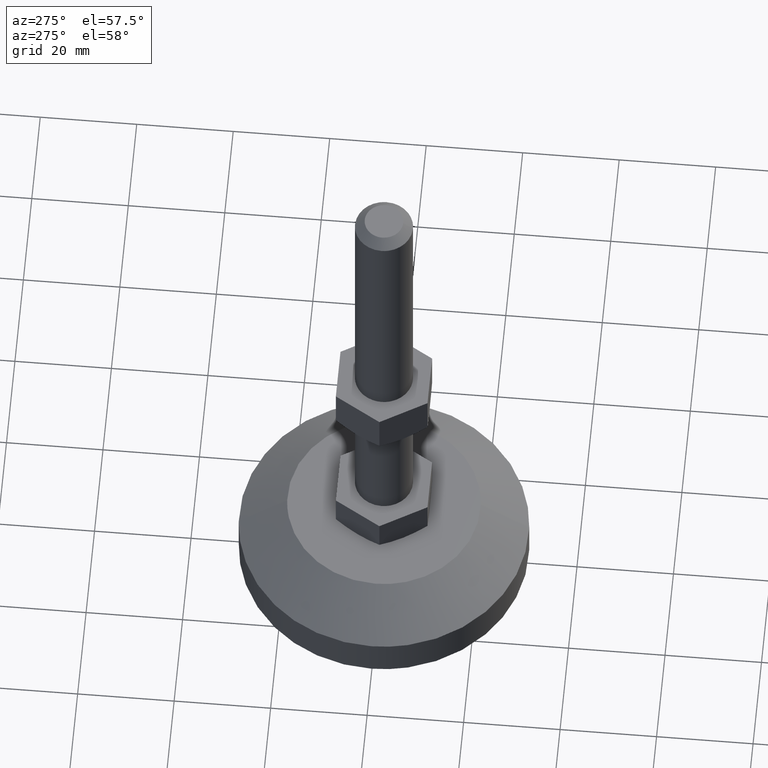
[diagram: clean part render]
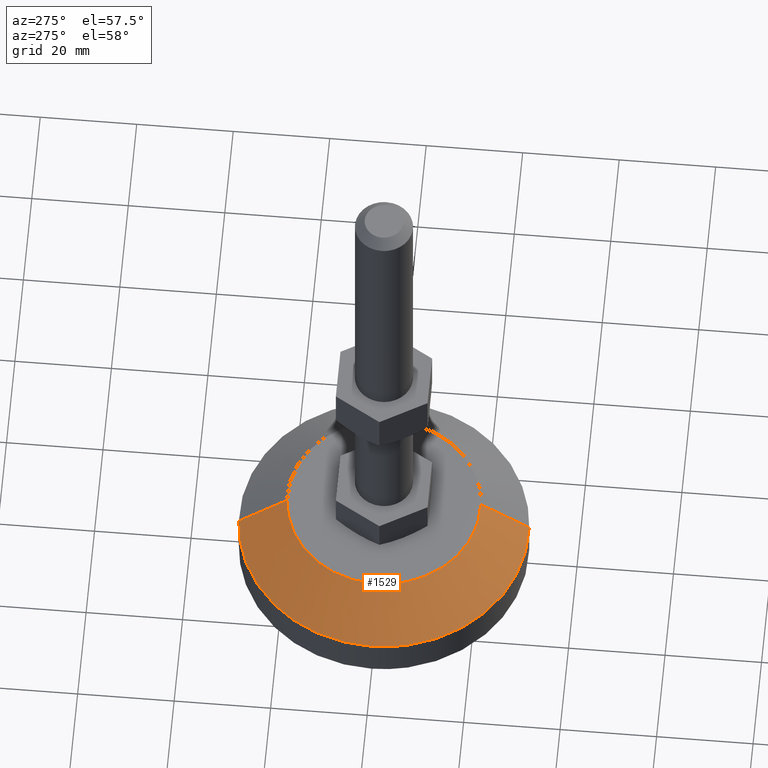
[diagram: same view with one face highlighted and labeled with its STEP entity id]
A machine part, auxiliary view. The second image highlights one B-rep face of the part: STEP entity #1529.
In plain terms, the highlighted face is a freeform B-spline surface patch.
Its self-contained STEP definition (entity closure, byte-faithful):
#889=CARTESIAN_POINT('',(-1.831437191129770,29.944045073588750,8.609004034189663));
#890=VERTEX_POINT('',#889);
#908=CARTESIAN_POINT('',(1.831437191129769,-29.944045073588750,8.609004034189665));
#909=VERTEX_POINT('',#908);
#956=CARTESIAN_POINT('',(-30.0,0.0,8.609004000000001));
#957=VERTEX_POINT('',#956);
#958=CARTESIAN_POINT('',(-30.0,0.0,8.609004000000001));
#959=CARTESIAN_POINT('',(-30.000009494969763,28.221217272297473,8.609004017094833));
#960=CARTESIAN_POINT('',(-1.831437191129770,29.944045073588750,8.609004034189663));
#968=(BOUNDED_CURVE()B_SPLINE_CURVE(2,(#958,#959,#960),.UNSPECIFIED.,.F.,.U.)B_SPLINE_CURVE_WITH_KNOTS((3,3),(0.0,0.239333181122431),.UNSPECIFIED.)CURVE()GEOMETRIC_REPRESENTATION_ITEM()RATIONAL_B_SPLINE_CURVE((1.0,0.719603736848753,0.976072510776148))REPRESENTATION_ITEM(''));
#969=EDGE_CURVE('',#957,#890,#968,.T.);
#975=CARTESIAN_POINT('',(1.831437191129769,-29.944045073588750,8.609004034189665));
#976=CARTESIAN_POINT('',(0.916582570326438,-29.999998814981005,8.609004033698350));
#977=CARTESIAN_POINT('',(0.000018426956785,-29.999998833347359,8.609004033176065));
#978=CARTESIAN_POINT('',(-29.999991068012978,-29.999999434495532,8.609004016081233));
#979=CARTESIAN_POINT('',(-30.0,0.0,8.609004000000001));
#987=(BOUNDED_CURVE()B_SPLINE_CURVE(2,(#975,#976,#977,#978,#979),.UNSPECIFIED.,.F.,.U.)B_SPLINE_CURVE_WITH_KNOTS((3,2,3),(0.739333181122431,0.750000000000000,1.0),.UNSPECIFIED.)CURVE()GEOMETRIC_REPRESENTATION_ITEM()RATIONAL_B_SPLINE_CURVE((0.976072510776148,0.987503044337795,1.0,0.707106781186547,1.0))REPRESENTATION_ITEM(''));
#988=EDGE_CURVE('',#909,#957,#987,.T.);
#1426=CARTESIAN_POINT('',(-1.220970790712717,19.962695968438549,16.999999999998192));
#1427=VERTEX_POINT('',#1426);
#1428=CARTESIAN_POINT('',(-1.220970790712717,19.962695968438549,16.999999999998192));
#1429=CARTESIAN_POINT('',(-1.831437191129770,29.944045073588750,8.609004034189663));
#1430=QUASI_UNIFORM_CURVE('',1,(#1428,#1429),.UNSPECIFIED.,.F.,.U.);
#1431=EDGE_CURVE('',#1427,#890,#1430,.T.);
#1450=CARTESIAN_POINT('',(1.220970790712715,-19.962695968438549,16.999999999998192));
#1451=VERTEX_POINT('',#1450);
#1465=CARTESIAN_POINT('',(1.220970790712715,-19.962695968438549,16.999999999998192));
#1466=CARTESIAN_POINT('',(1.831437191129769,-29.944045073588750,8.609004034189665));
#1467=QUASI_UNIFORM_CURVE('',1,(#1465,#1466),.UNSPECIFIED.,.F.,.U.);
#1468=EDGE_CURVE('',#1451,#909,#1467,.T.);
#1475=CARTESIAN_POINT('',(1.205708655813425,-19.713162268831869,17.209774899999999));
#1476=CARTESIAN_POINT('',(-18.507453613018441,-20.918870924645290,17.209774900000003));
#1477=CARTESIAN_POINT('',(-19.713162268831869,-1.205708655813425,17.209774899999999));
#1478=CARTESIAN_POINT('',(-20.918870924645290,18.507453613018441,17.209774900000003));
#1479=CARTESIAN_POINT('',(-1.205708655813425,19.713162268831869,17.209774899999999));
#1480=CARTESIAN_POINT('',(1.847099874301517,-30.199815994751610,8.393984727499998));
#1481=CARTESIAN_POINT('',(-28.352716120450101,-32.046915869053130,8.393984727499998));
#1482=CARTESIAN_POINT('',(-30.199815994751610,-1.847099874301517,8.393984727499998));
#1483=CARTESIAN_POINT('',(-32.046915869053130,28.352716120450101,8.393984727499998));
#1484=CARTESIAN_POINT('',(-1.847099874301517,30.199815994751610,8.393984727499998));
#1492=(BOUNDED_SURFACE()B_SPLINE_SURFACE(2,1,((#1475,#1480),(#1476,#1481),(#1477,#1482),(#1478,#1483),(#1479,#1484)),.UNSPECIFIED.,.F.,.F.,.U.)B_SPLINE_SURFACE_WITH_KNOTS((3,2,3),(2,2),(0.0,50.130196386203828,100.260392772407700),(0.0,13.714935122998130),.UNSPECIFIED.)GEOMETRIC_REPRESENTATION_ITEM()RATIONAL_B_SPLINE_SURFACE(((1.0,1.0),(0.707106781186548,0.707106781186548),(1.0,1.0),(0.707106781186548,0.707106781186548),(1.0,1.0)))REPRESENTATION_ITEM('')SURFACE());
#1493=ORIENTED_EDGE('',*,*,#1431,.T.);
#1494=ORIENTED_EDGE('',*,*,#969,.F.);
#1495=ORIENTED_EDGE('',*,*,#988,.F.);
#1496=ORIENTED_EDGE('',*,*,#1468,.F.);
#1497=CARTESIAN_POINT('',(-20.0,0.0,17.0));
#1498=VERTEX_POINT('',#1497);
#1499=CARTESIAN_POINT('',(1.220970790712715,-19.962695968438549,16.999999999998195));
#1500=CARTESIAN_POINT('',(0.611055265979655,-20.000000000002125,16.999999999998224));
#1501=CARTESIAN_POINT('',(1.350945E-013,-20.000000000002089,16.999999999998249));
#1502=CARTESIAN_POINT('',(-19.999999999999925,-20.000000000001016,16.999999999999154));
#1503=CARTESIAN_POINT('',(-20.0,0.0,17.0));
#1511=(BOUNDED_CURVE()B_SPLINE_CURVE(2,(#1499,#1500,#1501,#1502,#1503),.UNSPECIFIED.,.F.,.U.)B_SPLINE_CURVE_WITH_KNOTS((3,2,3),(0.739332962241835,0.750000000000000,1.0),.UNSPECIFIED.)CURVE()GEOMETRIC_REPRESENTATION_ITEM()RATIONAL_B_SPLINE_CURVE((0.976072041672916,0.987502787903226,1.0,0.707106781186548,1.0))REPRESENTATION_ITEM(''));
#1512=EDGE_CURVE('',#1451,#1498,#1511,.T.);
#1513=ORIENTED_EDGE('',*,*,#1512,.T.);
#1514=CARTESIAN_POINT('',(-20.0,0.0,17.0));
#1515=CARTESIAN_POINT('',(-20.000000000000068,18.814121338100389,16.999999999999087));
#1516=CARTESIAN_POINT('',(-1.220970790712716,19.962695968438542,16.999999999998188));
#1524=(BOUNDED_CURVE()B_SPLINE_CURVE(2,(#1514,#1515,#1516),.UNSPECIFIED.,.F.,.U.)B_SPLINE_CURVE_WITH_KNOTS((3,3),(0.0,0.239332962241835),.UNSPECIFIED.)CURVE()GEOMETRIC_REPRESENTATION_ITEM()RATIONAL_B_SPLINE_CURVE((1.0,0.719603993283322,0.976072041672916))REPRESENTATION_ITEM(''));
#1525=EDGE_CURVE('',#1498,#1427,#1524,.T.);
#1526=ORIENTED_EDGE('',*,*,#1525,.T.);
#1527=EDGE_LOOP('',(#1493,#1494,#1495,#1496,#1513,#1526));
#1528=FACE_OUTER_BOUND('',#1527,.T.);
#1529=ADVANCED_FACE('',(#1528),#1492,.T.);